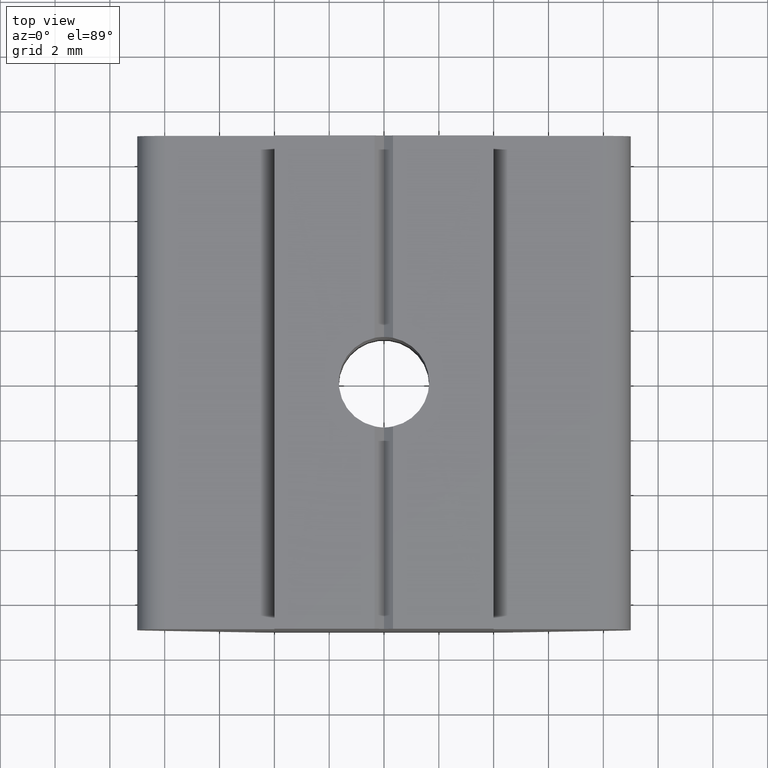
[diagram: clean part render]
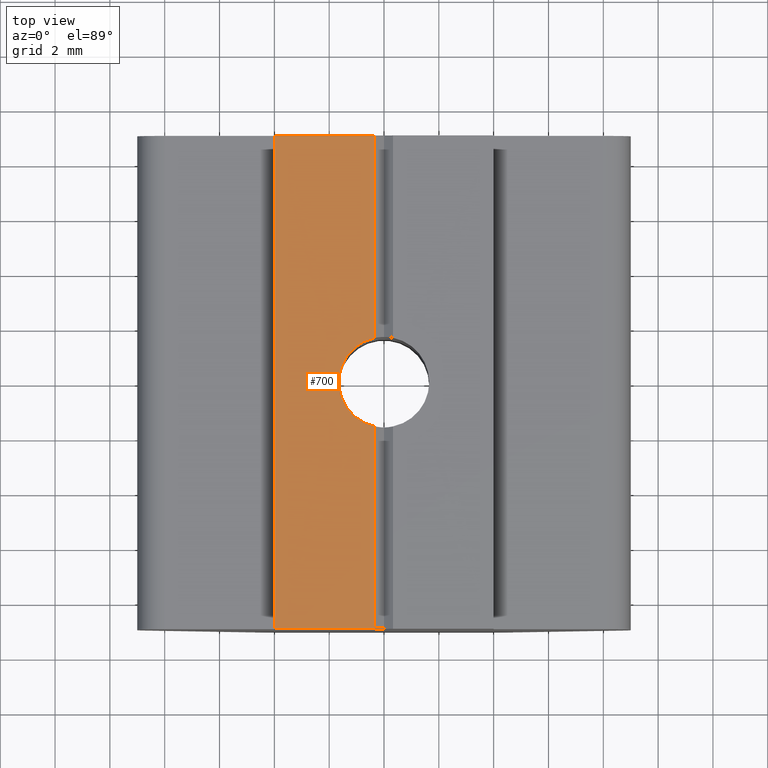
[diagram: same view with one face highlighted and labeled with its STEP entity id]
A machine part, top view. The second image highlights one B-rep face of the part: STEP entity #700.
In plain terms, the highlighted planar face has unit normal (0, 0, 1).
Its self-contained STEP definition (entity closure, byte-faithful):
#603=CARTESIAN_POINT('',(-0.343286605774694,9.0,7.999998234000031));
#604=VERTEX_POINT('',#603);
#611=CARTESIAN_POINT('',(-0.343286605774694,1.613894143460371,7.999998234000032));
#612=VERTEX_POINT('',#611);
#613=CARTESIAN_POINT('',(-0.343286605774694,9.0,7.999998234000031));
#614=DIRECTION('',(0.0,-1.0,0.0));
#615=VECTOR('',#614,7.386105856539631);
#616=LINE('',#613,#615);
#617=EDGE_CURVE('',#604,#612,#616,.T.);
#636=CARTESIAN_POINT('',(-0.343286605774694,-1.613894143460370,7.999998234000032));
#637=VERTEX_POINT('',#636);
#645=CARTESIAN_POINT('',(-0.343286605774694,-9.0,7.999998234000032));
#646=VERTEX_POINT('',#645);
#647=CARTESIAN_POINT('',(-0.343286605774694,-1.613894143460373,7.999998234000032));
#648=DIRECTION('',(0.0,-1.0,0.0));
#649=VECTOR('',#648,7.386105856539627);
#650=LINE('',#647,#649);
#651=EDGE_CURVE('',#637,#646,#650,.T.);
#662=CARTESIAN_POINT('',(-0.343286605774694,9.0,7.999998234000031));
#663=DIRECTION('',(0.0,0.0,1.0));
#664=DIRECTION('',(-1.0,0.0,0.0));
#665=AXIS2_PLACEMENT_3D('',#662,#663,#664);
#666=PLANE('',#665);
#667=CARTESIAN_POINT('',(-3.999999103984351,9.0,7.999998234000031));
#668=VERTEX_POINT('',#667);
#669=CARTESIAN_POINT('',(-0.343286605774694,9.0,7.999998234000031));
#670=DIRECTION('',(-1.0,0.0,0.0));
#671=VECTOR('',#670,3.656712498209657);
#672=LINE('',#669,#671);
#673=EDGE_CURVE('',#604,#668,#672,.T.);
#674=ORIENTED_EDGE('',*,*,#673,.T.);
#675=CARTESIAN_POINT('',(-3.999999103984351,-9.0,7.999998234000032));
#676=VERTEX_POINT('',#675);
#677=CARTESIAN_POINT('',(-3.999999103984351,9.0,7.999998234000031));
#678=DIRECTION('',(0.0,-1.0,0.0));
#679=VECTOR('',#678,18.0);
#680=LINE('',#677,#679);
#681=EDGE_CURVE('',#668,#676,#680,.T.);
#682=ORIENTED_EDGE('',*,*,#681,.T.);
#683=CARTESIAN_POINT('',(-0.343286605774694,-9.0,7.999998234000032));
#684=DIRECTION('',(-1.0,0.0,0.0));
#685=VECTOR('',#684,3.656712498209657);
#686=LINE('',#683,#685);
#687=EDGE_CURVE('',#646,#676,#686,.T.);
#688=ORIENTED_EDGE('',*,*,#687,.F.);
#689=ORIENTED_EDGE('',*,*,#651,.F.);
#690=CARTESIAN_POINT('',(0.0,4.898586E-016,7.999998234000032));
#691=DIRECTION('',(0.0,-6.123234E-017,-1.0));
#692=DIRECTION('',(1.0,0.0,0.0));
#693=AXIS2_PLACEMENT_3D('',#690,#691,#692);
#694=CIRCLE('',#693,1.650000000000000);
#695=EDGE_CURVE('',#637,#612,#694,.T.);
#696=ORIENTED_EDGE('',*,*,#695,.T.);
#697=ORIENTED_EDGE('',*,*,#617,.F.);
#698=EDGE_LOOP('',(#674,#682,#688,#689,#696,#697));
#699=FACE_OUTER_BOUND('',#698,.T.);
#700=ADVANCED_FACE('',(#699),#666,.T.);